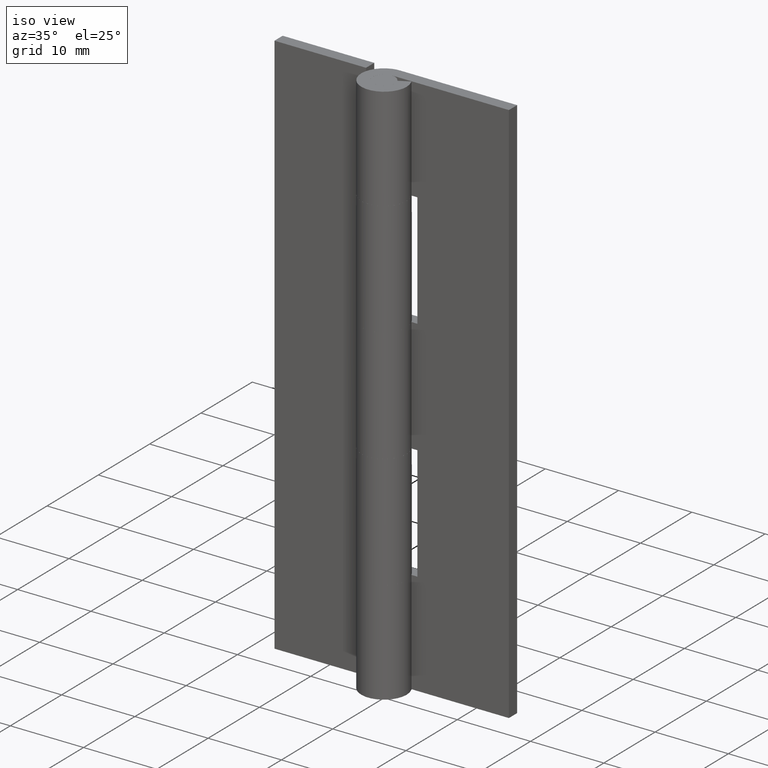
[diagram: clean part render]
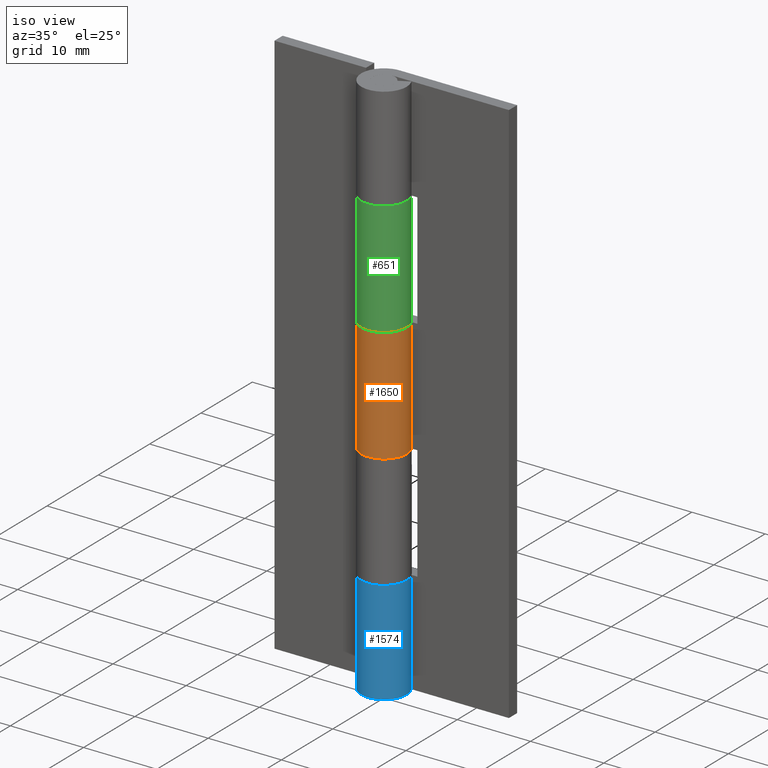
[diagram: same view with three faces highlighted in distinct colors, each labeled with its STEP entity id]
A machine part, iso view with three faces highlighted in distinct colors.
Their STEP definitions:

[orange] entity #1650 — the highlighted face is a freeform B-spline surface patch.
#798=CARTESIAN_POINT('',(0.003521362805220,3.099998000000000,29.699997000000000));
#799=VERTEX_POINT('',#798);
#800=CARTESIAN_POINT('',(0.0,3.099998000000000,29.699997000000000));
#801=VERTEX_POINT('',#800);
#802=CARTESIAN_POINT('',(0.003521362805220,3.099998000000000,29.699997000000000));
#803=CARTESIAN_POINT('',(0.0,3.099998000000000,29.699997000000000));
#804=QUASI_UNIFORM_CURVE('',1,(#802,#803),.UNSPECIFIED.,.F.,.U.);
#805=EDGE_CURVE('',#799,#801,#804,.T.);
#849=CARTESIAN_POINT('',(2.739981751764050,1.450000000000000,29.699997000000049));
#850=VERTEX_POINT('',#849);
#856=CARTESIAN_POINT('',(0.0,3.099998000000000,29.699997000000000));
#857=CARTESIAN_POINT('',(-2.356097610603766,3.099996737895512,29.699996999999968));
#858=CARTESIAN_POINT('',(-2.986848545660751,0.829898189834370,29.699996999999978));
#859=CARTESIAN_POINT('',(-3.617599480717734,-1.440200358226772,29.699996999999993));
#860=CARTESIAN_POINT('',(-1.599218559171948,-2.655655344977900,29.699997000000032));
#861=CARTESIAN_POINT('',(0.419162362373838,-3.871110331729029,29.699997000000057));
#862=CARTESIAN_POINT('',(2.130594885355308,-2.251790737784724,29.699997000000071));
#863=CARTESIAN_POINT('',(3.842027408336780,-0.632471143840418,29.699997000000081));
#864=CARTESIAN_POINT('',(2.739981751764050,1.450000000000000,29.699997000000049));
#872=(BOUNDED_CURVE()B_SPLINE_CURVE(2,(#856,#857,#858,#859,#860,#861,#862,#863,#864),.UNSPECIFIED.,.F.,.U.)B_SPLINE_CURVE_WITH_KNOTS((3,2,2,2,3),(0.0,0.250000000000000,0.500000000000000,0.750000000000000,1.0),.UNSPECIFIED.)CURVE()GEOMETRIC_REPRESENTATION_ITEM()RATIONAL_B_SPLINE_CURVE((1.0,0.796150117301085,1.0,0.796150117301085,1.0,0.796150117301085,1.0,0.796150117301085,1.0))REPRESENTATION_ITEM(''));
#873=EDGE_CURVE('',#801,#850,#872,.T.);
#988=CARTESIAN_POINT('',(2.739981751764050,1.450000000000000,45.300002999999997));
#989=VERTEX_POINT('',#988);
#990=CARTESIAN_POINT('',(0.0,3.099998000000000,45.300002999999997));
#991=VERTEX_POINT('',#990);
#992=CARTESIAN_POINT('',(2.739981751764050,1.450000000000000,45.300002999999997));
#993=CARTESIAN_POINT('',(3.842027408336779,-0.632471143840417,45.300002999999990));
#994=CARTESIAN_POINT('',(2.130594885355309,-2.251790737784723,45.300002999999997));
#995=CARTESIAN_POINT('',(0.419162362373838,-3.871110331729029,45.300002999999990));
#996=CARTESIAN_POINT('',(-1.599218559171949,-2.655655344977900,45.300002999999997));
#997=CARTESIAN_POINT('',(-3.617599480717734,-1.440200358226770,45.300002999999990));
#998=CARTESIAN_POINT('',(-2.986848545660751,0.829898189834370,45.300002999999997));
#999=CARTESIAN_POINT('',(-2.356097610603767,3.099996737895512,45.300002999999990));
#1000=CARTESIAN_POINT('',(0.0,3.099998000000000,45.300002999999997));
#1008=(BOUNDED_CURVE()B_SPLINE_CURVE(2,(#992,#993,#994,#995,#996,#997,#998,#999,#1000),.UNSPECIFIED.,.F.,.U.)B_SPLINE_CURVE_WITH_KNOTS((3,2,2,2,3),(0.0,0.250000000000000,0.500000000000000,0.750000000000000,1.0),.UNSPECIFIED.)CURVE()GEOMETRIC_REPRESENTATION_ITEM()RATIONAL_B_SPLINE_CURVE((1.0,0.796150117301085,1.0,0.796150117301085,1.0,0.796150117301085,1.0,0.796150117301085,1.0))REPRESENTATION_ITEM(''));
#1009=EDGE_CURVE('',#989,#991,#1008,.T.);
#1053=CARTESIAN_POINT('',(0.003521362805220,3.099998000000000,45.300002999999997));
#1054=VERTEX_POINT('',#1053);
#1060=CARTESIAN_POINT('',(0.003521362805220,3.099998000000000,45.300002999999997));
#1061=CARTESIAN_POINT('',(0.0,3.099998000000000,45.300002999999997));
#1062=QUASI_UNIFORM_CURVE('',1,(#1060,#1061),.UNSPECIFIED.,.F.,.U.);
#1063=EDGE_CURVE('',#1054,#991,#1062,.T.);
#1334=CARTESIAN_POINT('',(2.739981751764050,1.450000000000000,29.699997000000049));
#1335=CARTESIAN_POINT('',(2.739981751764050,1.450000000000000,45.300002999999997));
#1336=QUASI_UNIFORM_CURVE('',1,(#1334,#1335),.UNSPECIFIED.,.F.,.U.);
#1337=EDGE_CURVE('',#850,#989,#1336,.T.);
#1443=CARTESIAN_POINT('',(0.003521362805220,3.099998000000000,29.699997000000000));
#1444=CARTESIAN_POINT('',(0.003521362805220,3.099998000000000,45.300002999999997));
#1445=QUASI_UNIFORM_CURVE('',1,(#1443,#1444),.UNSPECIFIED.,.F.,.U.);
#1446=EDGE_CURVE('',#799,#1054,#1445,.T.);
#1620=CARTESIAN_POINT('',(2.699834918711257,1.523447213298633,29.309996849999980));
#1621=CARTESIAN_POINT('',(2.699834918711257,1.523447213298633,45.699753153750002));
#1622=CARTESIAN_POINT('',(4.558915972059315,-1.771193979864720,29.309996849999980));
#1623=CARTESIAN_POINT('',(4.558915972059315,-1.771193979864720,45.699753153749995));
#1624=CARTESIAN_POINT('',(0.963178343373894,-2.946572157415377,29.309996849999980));
#1625=CARTESIAN_POINT('',(0.963178343373894,-2.946572157415377,45.699753153750002));
#1626=CARTESIAN_POINT('',(-2.632559285311527,-4.121950334966037,29.309996849999980));
#1627=CARTESIAN_POINT('',(-2.632559285311527,-4.121950334966037,45.699753153749995));
#1628=CARTESIAN_POINT('',(-3.078396003541829,-0.365346473060419,29.309996849999980));
#1629=CARTESIAN_POINT('',(-3.078396003541829,-0.365346473060419,45.699753153750002));
#1630=CARTESIAN_POINT('',(-3.524232721772132,3.391257388845198,29.309996849999980));
#1631=CARTESIAN_POINT('',(-3.524232721772132,3.391257388845198,45.699753153749995));
#1632=CARTESIAN_POINT('',(0.246733547457015,3.090165457796600,29.309996849999980));
#1633=CARTESIAN_POINT('',(0.246733547457015,3.090165457796600,45.699753153750002));
#1641=(BOUNDED_SURFACE()B_SPLINE_SURFACE(1,2,((#1620,#1622,#1624,#1626,#1628,#1630,#1632),(#1621,#1623,#1625,#1627,#1629,#1631,#1633)),.UNSPECIFIED.,.F.,.F.,.U.)B_SPLINE_SURFACE_WITH_KNOTS((2,2),(3,2,2,3),(0.0,16.389756303750030),(0.0,5.870281529289076,11.740563058578150,17.610844587867231),.UNSPECIFIED.)GEOMETRIC_REPRESENTATION_ITEM()RATIONAL_B_SPLINE_SURFACE(((1.0,0.633830967398710,1.0,0.633830967398710,1.0,0.633830967398710,1.0),(1.0,0.633830967398710,1.0,0.633830967398710,1.0,0.633830967398710,1.0)))REPRESENTATION_ITEM('')SURFACE());
#1642=ORIENTED_EDGE('',*,*,#805,.T.);
#1643=ORIENTED_EDGE('',*,*,#873,.T.);
#1644=ORIENTED_EDGE('',*,*,#1337,.T.);
#1645=ORIENTED_EDGE('',*,*,#1009,.T.);
#1646=ORIENTED_EDGE('',*,*,#1063,.F.);
#1647=ORIENTED_EDGE('',*,*,#1446,.F.);
#1648=EDGE_LOOP('',(#1642,#1643,#1644,#1645,#1646,#1647));
#1649=FACE_OUTER_BOUND('',#1648,.T.);
#1650=ADVANCED_FACE('',(#1649),#1641,.T.);

[blue] entity #1574 — the highlighted face is a freeform B-spline surface patch.
#883=CARTESIAN_POINT('',(2.739981751764050,1.450000000000000,14.100006000000061));
#884=VERTEX_POINT('',#883);
#885=CARTESIAN_POINT('',(0.0,3.099998000000000,14.100006000000100));
#886=VERTEX_POINT('',#885);
#887=CARTESIAN_POINT('',(2.739981751764050,1.450000000000000,14.100006000000061));
#888=CARTESIAN_POINT('',(3.842027408336779,-0.632471143840417,14.100006000000040));
#889=CARTESIAN_POINT('',(2.130594885355309,-2.251790737784723,14.100006000000040));
#890=CARTESIAN_POINT('',(0.419162362373838,-3.871110331729029,14.100006000000054));
#891=CARTESIAN_POINT('',(-1.599218559171949,-2.655655344977900,14.100006000000080));
#892=CARTESIAN_POINT('',(-3.617599480717734,-1.440200358226770,14.100006000000105));
#893=CARTESIAN_POINT('',(-2.986848545660751,0.829898189834370,14.100006000000119));
#894=CARTESIAN_POINT('',(-2.356097610603767,3.099996737895512,14.100006000000128));
#895=CARTESIAN_POINT('',(0.0,3.099998000000000,14.100006000000100));
#903=(BOUNDED_CURVE()B_SPLINE_CURVE(2,(#887,#888,#889,#890,#891,#892,#893,#894,#895),.UNSPECIFIED.,.F.,.U.)B_SPLINE_CURVE_WITH_KNOTS((3,2,2,2,3),(0.0,0.250000000000000,0.500000000000000,0.750000000000000,1.0),.UNSPECIFIED.)CURVE()GEOMETRIC_REPRESENTATION_ITEM()RATIONAL_B_SPLINE_CURVE((1.0,0.796150117301085,1.0,0.796150117301085,1.0,0.796150117301085,1.0,0.796150117301085,1.0))REPRESENTATION_ITEM(''));
#904=EDGE_CURVE('',#884,#886,#903,.T.);
#948=CARTESIAN_POINT('',(0.003521362805220,3.099998000000000,14.100006000000100));
#949=VERTEX_POINT('',#948);
#955=CARTESIAN_POINT('',(0.0,3.099998000000000,14.100006000000100));
#956=CARTESIAN_POINT('',(0.003521362805220,3.099998000000000,14.100006000000100));
#957=QUASI_UNIFORM_CURVE('',1,(#955,#956),.UNSPECIFIED.,.F.,.U.);
#958=EDGE_CURVE('',#886,#949,#957,.T.);
#1256=CARTESIAN_POINT('',(2.739981751764050,1.450000000000000,0.0));
#1257=VERTEX_POINT('',#1256);
#1258=CARTESIAN_POINT('',(0.003521362805220,3.099998000000000,0.0));
#1259=VERTEX_POINT('',#1258);
#1260=CARTESIAN_POINT('',(2.739981751764050,1.450000000000002,0.0));
#1261=CARTESIAN_POINT('',(3.842352259281344,-0.633086258124314,0.0));
#1262=CARTESIAN_POINT('',(2.129955333572986,-2.252396562993291,0.0));
#1263=CARTESIAN_POINT('',(0.417558407864627,-3.871706867862268,0.0));
#1264=CARTESIAN_POINT('',(-1.600726611546711,-2.654745621540072,0.0));
#1265=CARTESIAN_POINT('',(-3.619011630958046,-1.437784375217877,0.0));
#1266=CARTESIAN_POINT('',(-2.986140433580759,0.832445380150624,0.0));
#1267=CARTESIAN_POINT('',(-2.353269236203469,3.102675135519129,0.0));
#1268=CARTESIAN_POINT('',(0.003521362805217,3.099997999999999,0.0));
#1276=(BOUNDED_CURVE()B_SPLINE_CURVE(2,(#1260,#1261,#1262,#1263,#1264,#1265,#1266,#1267,#1268),.UNSPECIFIED.,.F.,.U.)B_SPLINE_CURVE_WITH_KNOTS((3,2,2,2,3),(0.0,0.250000000000000,0.500000000000000,0.750000000000000,1.0),.UNSPECIFIED.)CURVE()GEOMETRIC_REPRESENTATION_ITEM()RATIONAL_B_SPLINE_CURVE((1.0,0.796064190964140,1.0,0.796064190964140,1.0,0.796064190964140,1.0,0.796064190964140,1.0))REPRESENTATION_ITEM(''));
#1277=EDGE_CURVE('',#1257,#1259,#1276,.T.);
#1435=CARTESIAN_POINT('',(0.003521362805220,3.099998000000000,0.0));
#1436=CARTESIAN_POINT('',(0.003521362805220,3.099998000000000,14.100006000000100));
#1437=QUASI_UNIFORM_CURVE('',1,(#1435,#1436),.UNSPECIFIED.,.F.,.U.);
#1438=EDGE_CURVE('',#1259,#949,#1437,.T.);
#1541=CARTESIAN_POINT('',(2.701086253403874,1.521227481895005,-0.352500150000003));
#1542=CARTESIAN_POINT('',(2.701086253403874,1.521227481895005,14.461318653750119));
#1543=CARTESIAN_POINT('',(4.535584156375530,-1.736100647256542,-0.352500150000004));
#1544=CARTESIAN_POINT('',(4.535584156375530,-1.736100647256542,14.461318653750123));
#1545=CARTESIAN_POINT('',(0.994984302584502,-2.935984713449718,-0.352500150000003));
#1546=CARTESIAN_POINT('',(0.994984302584502,-2.935984713449718,14.461318653750119));
#1547=CARTESIAN_POINT('',(-2.545615551206526,-4.135868779642896,-0.352500150000004));
#1548=CARTESIAN_POINT('',(-2.545615551206526,-4.135868779642896,14.461318653750123));
#1549=CARTESIAN_POINT('',(-3.069419339239028,-0.434355752702138,-0.352500150000003));
#1550=CARTESIAN_POINT('',(-3.069419339239028,-0.434355752702138,14.461318653750119));
#1551=CARTESIAN_POINT('',(-3.593223127271530,3.267157274238619,-0.352500150000004));
#1552=CARTESIAN_POINT('',(-3.593223127271530,3.267157274238619,14.461318653750123));
#1553=CARTESIAN_POINT('',(0.141283570192311,3.096778802690581,-0.352500150000003));
#1554=CARTESIAN_POINT('',(0.141283570192311,3.096778802690581,14.461318653750119));
#1562=(BOUNDED_SURFACE()B_SPLINE_SURFACE(1,2,((#1541,#1543,#1545,#1547,#1549,#1551,#1553),(#1542,#1544,#1546,#1548,#1550,#1552,#1554)),.UNSPECIFIED.,.F.,.F.,.U.)B_SPLINE_SURFACE_WITH_KNOTS((2,2),(3,2,2,3),(0.0,14.813818803750131),(0.0,5.826188062565751,11.652376125131500,17.478564187697248),.UNSPECIFIED.)GEOMETRIC_REPRESENTATION_ITEM()RATIONAL_B_SPLINE_SURFACE(((1.0,0.638320090924328,1.0,0.638320090924328,1.0,0.638320090924328,1.0),(1.0,0.638320090924328,1.0,0.638320090924328,1.0,0.638320090924328,1.0)))REPRESENTATION_ITEM('')SURFACE());
#1563=ORIENTED_EDGE('',*,*,#904,.T.);
#1564=ORIENTED_EDGE('',*,*,#958,.T.);
#1565=ORIENTED_EDGE('',*,*,#1438,.F.);
#1566=ORIENTED_EDGE('',*,*,#1277,.F.);
#1567=CARTESIAN_POINT('',(2.739981751764050,1.450000000000000,0.0));
#1568=CARTESIAN_POINT('',(2.739981751764050,1.450000000000000,14.100006000000061));
#1569=QUASI_UNIFORM_CURVE('',1,(#1567,#1568),.UNSPECIFIED.,.F.,.U.);
#1570=EDGE_CURVE('',#1257,#884,#1569,.T.);
#1571=ORIENTED_EDGE('',*,*,#1570,.T.);
#1572=EDGE_LOOP('',(#1563,#1564,#1565,#1566,#1571));
#1573=FACE_OUTER_BOUND('',#1572,.T.);
#1574=ADVANCED_FACE('',(#1573),#1562,.T.);

[green] entity #651 — the highlighted face is a freeform B-spline surface patch.
#134=CARTESIAN_POINT('',(-2.739981751764050,1.450000000000000,45.300002999999997));
#135=VERTEX_POINT('',#134);
#136=CARTESIAN_POINT('',(0.0,3.099998000000000,45.300002999999997));
#137=VERTEX_POINT('',#136);
#138=CARTESIAN_POINT('',(-2.739981751764050,1.450000000000000,45.300002999999997));
#139=CARTESIAN_POINT('',(-3.842027408336779,-0.632471143840417,45.300002999999990));
#140=CARTESIAN_POINT('',(-2.130594885355309,-2.251790737784723,45.300002999999997));
#141=CARTESIAN_POINT('',(-0.419162362373838,-3.871110331729029,45.300002999999990));
#142=CARTESIAN_POINT('',(1.599218559171949,-2.655655344977900,45.300002999999997));
#143=CARTESIAN_POINT('',(3.617599480717734,-1.440200358226770,45.300002999999990));
#144=CARTESIAN_POINT('',(2.986848545660751,0.829898189834370,45.300002999999997));
#145=CARTESIAN_POINT('',(2.356097610603767,3.099996737895512,45.300002999999990));
#146=CARTESIAN_POINT('',(0.0,3.099998000000000,45.300002999999997));
#154=(BOUNDED_CURVE()B_SPLINE_CURVE(2,(#138,#139,#140,#141,#142,#143,#144,#145,#146),.UNSPECIFIED.,.F.,.U.)B_SPLINE_CURVE_WITH_KNOTS((3,2,2,2,3),(0.0,0.250000000000000,0.500000000000000,0.750000000000000,1.0),.UNSPECIFIED.)CURVE()GEOMETRIC_REPRESENTATION_ITEM()RATIONAL_B_SPLINE_CURVE((1.0,0.796150117301085,1.0,0.796150117301085,1.0,0.796150117301085,1.0,0.796150117301085,1.0))REPRESENTATION_ITEM(''));
#155=EDGE_CURVE('',#135,#137,#154,.T.);
#199=CARTESIAN_POINT('',(-0.003521362805222,3.099998000000000,45.300002999999997));
#200=VERTEX_POINT('',#199);
#206=CARTESIAN_POINT('',(-0.003521362805222,3.099998000000000,45.300002999999997));
#207=CARTESIAN_POINT('',(0.0,3.099998000000000,45.300002999999997));
#208=QUASI_UNIFORM_CURVE('',1,(#206,#207),.UNSPECIFIED.,.F.,.U.);
#209=EDGE_CURVE('',#200,#137,#208,.T.);
#388=CARTESIAN_POINT('',(0.0,3.099998000000000,60.899993999999893));
#389=VERTEX_POINT('',#388);
#390=CARTESIAN_POINT('',(-0.003521362805222,3.099998000000000,60.899993999999893));
#391=VERTEX_POINT('',#390);
#392=CARTESIAN_POINT('',(0.0,3.099998000000000,60.899993999999893));
#393=CARTESIAN_POINT('',(-0.003521362805222,3.099998000000000,60.899993999999893));
#394=QUASI_UNIFORM_CURVE('',1,(#392,#393),.UNSPECIFIED.,.F.,.U.);
#395=EDGE_CURVE('',#389,#391,#394,.T.);
#431=CARTESIAN_POINT('',(-2.739981751764050,1.450000000000000,60.899993999999893));
#432=VERTEX_POINT('',#431);
#438=CARTESIAN_POINT('',(0.0,3.099998000000000,60.899993999999893));
#439=CARTESIAN_POINT('',(2.356097610603766,3.099996737895512,60.899993999999893));
#440=CARTESIAN_POINT('',(2.986848545660751,0.829898189834370,60.899993999999893));
#441=CARTESIAN_POINT('',(3.617599480717734,-1.440200358226772,60.899993999999893));
#442=CARTESIAN_POINT('',(1.599218559171948,-2.655655344977900,60.899993999999893));
#443=CARTESIAN_POINT('',(-0.419162362373838,-3.871110331729029,60.899993999999893));
#444=CARTESIAN_POINT('',(-2.130594885355308,-2.251790737784724,60.899993999999893));
#445=CARTESIAN_POINT('',(-3.842027408336780,-0.632471143840418,60.899993999999893));
#446=CARTESIAN_POINT('',(-2.739981751764050,1.450000000000000,60.899993999999893));
#454=(BOUNDED_CURVE()B_SPLINE_CURVE(2,(#438,#439,#440,#441,#442,#443,#444,#445,#446),.UNSPECIFIED.,.F.,.U.)B_SPLINE_CURVE_WITH_KNOTS((3,2,2,2,3),(0.0,0.250000000000000,0.500000000000000,0.750000000000000,1.0),.UNSPECIFIED.)CURVE()GEOMETRIC_REPRESENTATION_ITEM()RATIONAL_B_SPLINE_CURVE((1.0,0.796150117301085,1.0,0.796150117301085,1.0,0.796150117301085,1.0,0.796150117301085,1.0))REPRESENTATION_ITEM(''));
#455=EDGE_CURVE('',#389,#432,#454,.T.);
#613=CARTESIAN_POINT('',(-0.087215809709333,3.098772886569253,44.910003224999990));
#614=CARTESIAN_POINT('',(-0.087215809709333,3.098772886569253,61.299743769374899));
#615=CARTESIAN_POINT('',(3.694254208917625,3.205203393624339,44.910003224999983));
#616=CARTESIAN_POINT('',(3.694254208917625,3.205203393624339,61.299743769374913));
#617=CARTESIAN_POINT('',(3.055487706738078,-0.523445196723091,44.910003224999990));
#618=CARTESIAN_POINT('',(3.055487706738078,-0.523445196723091,61.299743769374899));
#619=CARTESIAN_POINT('',(2.416721204558533,-4.252093787070521,44.910003224999983));
#620=CARTESIAN_POINT('',(2.416721204558533,-4.252093787070521,61.299743769374913));
#621=CARTESIAN_POINT('',(-1.113692359485487,-2.893041535896719,44.910003224999990));
#622=CARTESIAN_POINT('',(-1.113692359485487,-2.893041535896719,61.299743769374899));
#623=CARTESIAN_POINT('',(-4.644105923529505,-1.533989284722917,44.910003224999983));
#624=CARTESIAN_POINT('',(-4.644105923529505,-1.533989284722917,61.299743769374913));
#625=CARTESIAN_POINT('',(-2.617769613640667,1.660506624467241,44.910003224999990));
#626=CARTESIAN_POINT('',(-2.617769613640667,1.660506624467241,61.299743769374899));
#634=(BOUNDED_SURFACE()B_SPLINE_SURFACE(1,2,((#613,#615,#617,#619,#621,#623,#625),(#614,#616,#618,#620,#622,#624,#626)),.UNSPECIFIED.,.F.,.F.,.U.)B_SPLINE_SURFACE_WITH_KNOTS((2,2),(3,2,2,3),(0.0,16.389740544374909),(0.0,5.870281529289077,11.740563058578150,17.610844587867231),.UNSPECIFIED.)GEOMETRIC_REPRESENTATION_ITEM()RATIONAL_B_SPLINE_SURFACE(((1.0,0.633830967398710,1.0,0.633830967398710,1.0,0.633830967398710,1.0),(1.0,0.633830967398710,1.0,0.633830967398710,1.0,0.633830967398710,1.0)))REPRESENTATION_ITEM('')SURFACE());
#635=ORIENTED_EDGE('',*,*,#155,.T.);
#636=ORIENTED_EDGE('',*,*,#209,.F.);
#637=CARTESIAN_POINT('',(-0.003521362805222,3.099998000000000,45.300002999999997));
#638=CARTESIAN_POINT('',(-0.003521362805222,3.099998000000000,60.899993999999893));
#639=QUASI_UNIFORM_CURVE('',1,(#637,#638),.UNSPECIFIED.,.F.,.U.);
#640=EDGE_CURVE('',#200,#391,#639,.T.);
#641=ORIENTED_EDGE('',*,*,#640,.T.);
#642=ORIENTED_EDGE('',*,*,#395,.F.);
#643=ORIENTED_EDGE('',*,*,#455,.T.);
#644=CARTESIAN_POINT('',(-2.739981751764050,1.450000000000000,45.300002999999997));
#645=CARTESIAN_POINT('',(-2.739981751764050,1.450000000000000,60.899993999999893));
#646=QUASI_UNIFORM_CURVE('',1,(#644,#645),.UNSPECIFIED.,.F.,.U.);
#647=EDGE_CURVE('',#135,#432,#646,.T.);
#648=ORIENTED_EDGE('',*,*,#647,.F.);
#649=EDGE_LOOP('',(#635,#636,#641,#642,#643,#648));
#650=FACE_OUTER_BOUND('',#649,.T.);
#651=ADVANCED_FACE('',(#650),#634,.T.);